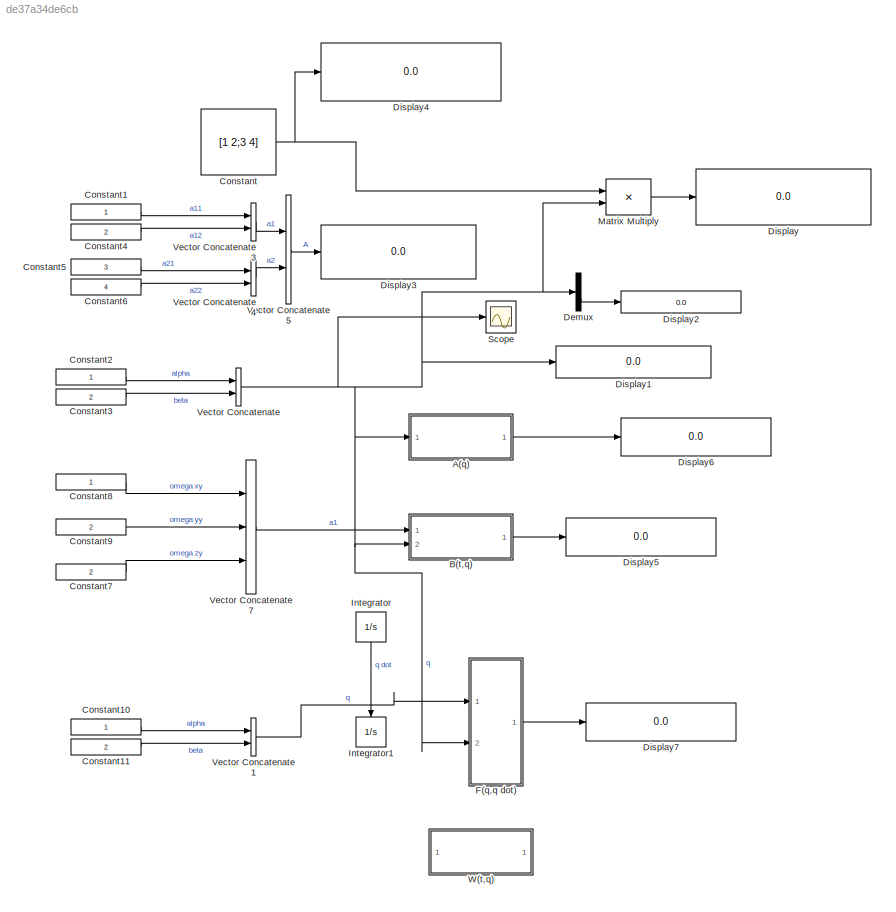
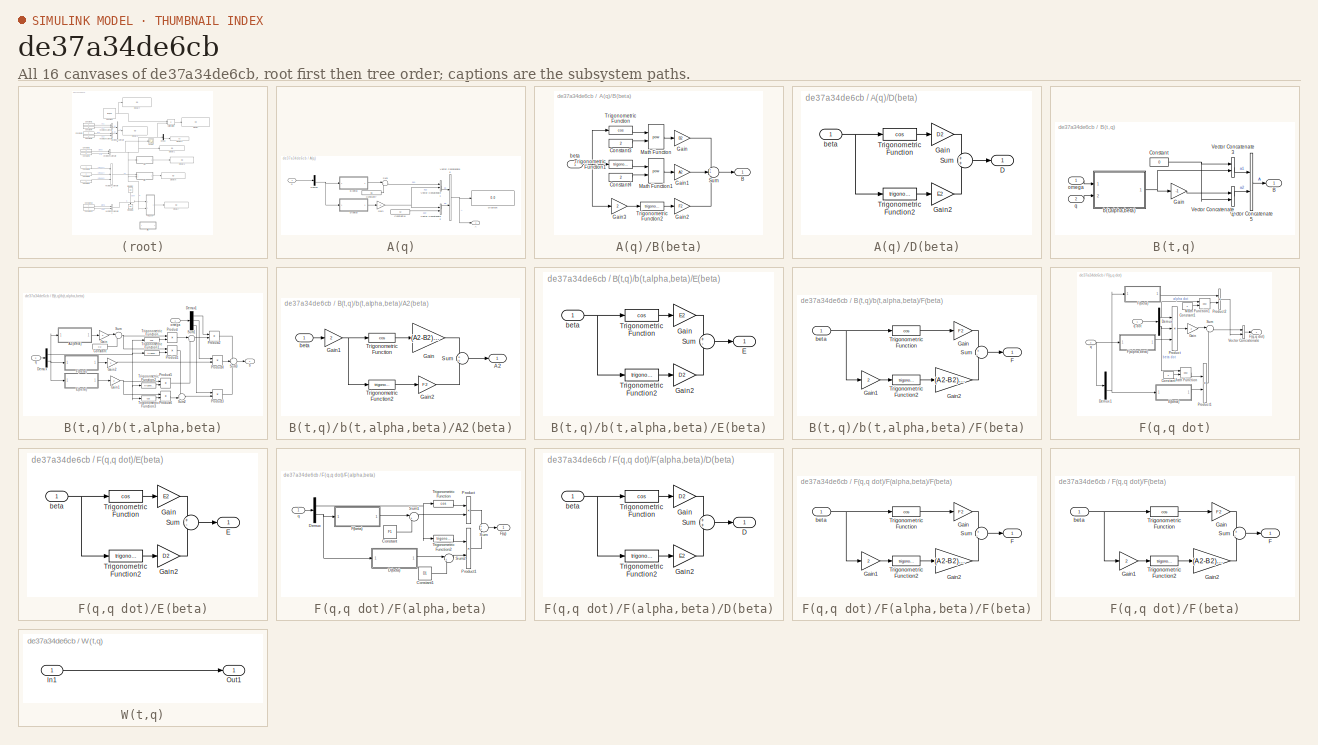
[diagram: thumbnail index - all 16 canvases of the model, root first then tree order]
MODEL slx_de37a34de6cb
KIND model
CONFIG AbsTol = auto
CONFIG EnableMultiTasking = off
CONFIG FixedStep = auto
CONFIG MaxStep = auto
CONFIG MinStep = auto
CONFIG RelTol = 1e-3
CONFIG SampleTimeConstraint = Unconstrained
CONFIG Solver = VariableStepAuto
CONFIG SolverName = VariableStepAuto
CONFIG StartTime = 0.0
CONFIG StopTime = 10.0
WORKSPACE source: MAT-file member
WORKSPACE A2 = 4
BLOCK [SubSystem] A(q)
  Ports = [1, 1]
  RequestExecContextInheritance = off
BLOCK [Outport] A(q)/A
  IconDisplay = Port number
BLOCK [SubSystem] A(q)/B(beta)
  Ports = [1, 1]
  RequestExecContextInheritance = off
BLOCK [Outport] A(q)/B(beta)/B
  IconDisplay = Port number
BLOCK [Constant] A(q)/B(beta)/Constant3
  Value = 2
BLOCK [Constant] A(q)/B(beta)/Constant4
  Value = 2
BLOCK [Gain] A(q)/B(beta)/Gain
  Gain = B2
  OutDataTypeStr = Inherit: Inherit via internal rule
  ParamDataTypeStr = Inherit: Inherit via internal rule
  SaturateOnIntegerOverflow = off
BLOCK [Gain] A(q)/B(beta)/Gain1
  Gain = A2
  OutDataTypeStr = Inherit: Inherit via internal rule
  ParamDataTypeStr = Inherit: Inherit via internal rule
  SaturateOnIntegerOverflow = off
BLOCK [Gain] A(q)/B(beta)/Gain2
  Gain = F2
  OutDataTypeStr = Inherit: Inherit via internal rule
  ParamDataTypeStr = Inherit: Inherit via internal rule
  SaturateOnIntegerOverflow = off
BLOCK [Gain] A(q)/B(beta)/Gain3
  Gain = 2
  OutDataTypeStr = Inherit: Inherit via internal rule
  ParamDataTypeStr = Inherit: Inherit via internal rule
  SaturateOnIntegerOverflow = off
BLOCK [Math] A(q)/B(beta)/Math Function
  Operator = pow
  Ports = [2, 1]
BLOCK [Math] A(q)/B(beta)/Math Function1
  Operator = pow
  Ports = [2, 1]
BLOCK [Sum] A(q)/B(beta)/Sum
  IconShape = round
  InputSameDT = off
  Inputs = ++-
  OutDataTypeStr = Inherit: Inherit via internal rule
  Ports = [3, 1]
  SaturateOnIntegerOverflow = off
BLOCK [Trigonometry] A(q)/B(beta)/Trigonometric Function
  Operator = cos
  Ports = [1, 1]
BLOCK [Trigonometry] A(q)/B(beta)/Trigonometric Function1
  Ports = [1, 1]
BLOCK [Trigonometry] A(q)/B(beta)/Trigonometric Function2
  Ports = [1, 1]
BLOCK [Inport] A(q)/B(beta)/beta
  IconDisplay = Port number
BLOCK [Constant] A(q)/Constant10
  Value = C2
BLOCK [Constant] A(q)/Constant7
  Value = B1
BLOCK [SubSystem] A(q)/D(beta)
  Ports = [1, 1]
  RequestExecContextInheritance = off
BLOCK [Outport] A(q)/D(beta)/D
  IconDisplay = Port number
BLOCK [Gain] A(q)/D(beta)/Gain
  Gain = D2
  OutDataTypeStr = Inherit: Inherit via internal rule
  ParamDataTypeStr = Inherit: Inherit via internal rule
  SaturateOnIntegerOverflow = off
BLOCK [Gain] A(q)/D(beta)/Gain2
  Gain = E2
  OutDataTypeStr = Inherit: Inherit via internal rule
  ParamDataTypeStr = Inherit: Inherit via internal rule
  SaturateOnIntegerOverflow = off
BLOCK [Sum] A(q)/D(beta)/Sum
  IconShape = round
  InputSameDT = off
  OutDataTypeStr = Inherit: Inherit via internal rule
  Ports = [2, 1]
  SaturateOnIntegerOverflow = off
BLOCK [Trigonometry] A(q)/D(beta)/Trigonometric Function
  Operator = cos
  Ports = [1, 1]
BLOCK [Trigonometry] A(q)/D(beta)/Trigonometric Function2
  Ports = [1, 1]
BLOCK [Inport] A(q)/D(beta)/beta
  IconDisplay = Port number
BLOCK [Demux] A(q)/Demux
  DisplayOption = bar
  Outputs = 2
  Ports = [1, 2]
BLOCK [Display] A(q)/Display5
  Decimation = 1
  Ports = [1]
BLOCK [Gain] A(q)/Gain
  Gain = -1
  OutDataTypeStr = Inherit: Inherit via internal rule
  ParamDataTypeStr = Inherit: Inherit via internal rule
  SaturateOnIntegerOverflow = off
BLOCK [Sum] A(q)/Sum
  IconShape = round
  InputSameDT = off
  Inputs = |++
  OutDataTypeStr = Inherit: Inherit via internal rule
  Ports = [2, 1]
  SaturateOnIntegerOverflow = off
BLOCK [Concatenate] A(q)/Vector Concatenate1
  Ports = [2, 1]
BLOCK [Concatenate] A(q)/Vector Concatenate2
  Ports = [2, 1]
BLOCK [Concatenate] A(q)/Vector Concatenate6
  Ports = [2, 1]
BLOCK [Inport] A(q)/q
  IconDisplay = Port number
BLOCK [SubSystem] B(t,q)
  Ports = [2, 1]
  RequestExecContextInheritance = off
BLOCK [Outport] B(t,q)/B
  IconDisplay = Port number
BLOCK [Constant] B(t,q)/Constant
  Value = 0
BLOCK [Gain] B(t,q)/Gain
  Gain = -1
  OutDataTypeStr = Inherit: Inherit via internal rule
  ParamDataTypeStr = Inherit: Inherit via internal rule
  SaturateOnIntegerOverflow = off
BLOCK [Concatenate] B(t,q)/Vector Concatenate3
  Ports = [2, 1]
BLOCK [Concatenate] B(t,q)/Vector Concatenate4
  Ports = [2, 1]
BLOCK [Concatenate] B(t,q)/Vector Concatenate5
  Ports = [2, 1]
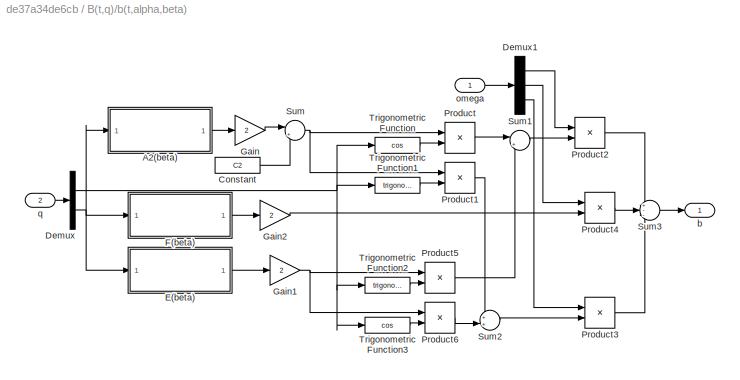
BLOCK [SubSystem] B(t,q)/b(t,alpha,beta)
  Ports = [2, 1]
  RequestExecContextInheritance = off
BLOCK [SubSystem] B(t,q)/b(t,alpha,beta)/A2(beta)
  Ports = [1, 1]
  RequestExecContextInheritance = off
BLOCK [Outport] B(t,q)/b(t,alpha,beta)/A2(beta)/A2
  IconDisplay = Port number
BLOCK [Gain] B(t,q)/b(t,alpha,beta)/A2(beta)/Gain
  Gain = (A2-B2)/2
  OutDataTypeStr = Inherit: Inherit via internal rule
  ParamDataTypeStr = Inherit: Inherit via internal rule
  SaturateOnIntegerOverflow = off
BLOCK [Gain] B(t,q)/b(t,alpha,beta)/A2(beta)/Gain1
  Gain = 2
  OutDataTypeStr = Inherit: Inherit via internal rule
  ParamDataTypeStr = Inherit: Inherit via internal rule
  SaturateOnIntegerOverflow = off
BLOCK [Gain] B(t,q)/b(t,alpha,beta)/A2(beta)/Gain2
  Gain = F2
  OutDataTypeStr = Inherit: Inherit via internal rule
  ParamDataTypeStr = Inherit: Inherit via internal rule
  SaturateOnIntegerOverflow = off
BLOCK [Sum] B(t,q)/b(t,alpha,beta)/A2(beta)/Sum
  IconShape = round
  InputSameDT = off
  OutDataTypeStr = Inherit: Inherit via internal rule
  Ports = [2, 1]
  SaturateOnIntegerOverflow = off
BLOCK [Trigonometry] B(t,q)/b(t,alpha,beta)/A2(beta)/Trigonometric Function
  Operator = cos
  Ports = [1, 1]
BLOCK [Trigonometry] B(t,q)/b(t,alpha,beta)/A2(beta)/Trigonometric Function2
  Ports = [1, 1]
BLOCK [Inport] B(t,q)/b(t,alpha,beta)/A2(beta)/beta
  IconDisplay = Port number
BLOCK [Constant] B(t,q)/b(t,alpha,beta)/Constant
  Value = C2
BLOCK [Demux] B(t,q)/b(t,alpha,beta)/Demux
  DisplayOption = bar
  Outputs = 2
  Ports = [1, 2]
BLOCK [Demux] B(t,q)/b(t,alpha,beta)/Demux1
  DisplayOption = bar
  Outputs = 3
  Ports = [1, 3]
BLOCK [SubSystem] B(t,q)/b(t,alpha,beta)/E(beta)
  Ports = [1, 1]
  RequestExecContextInheritance = off
BLOCK [Outport] B(t,q)/b(t,alpha,beta)/E(beta)/E
  IconDisplay = Port number
BLOCK [Gain] B(t,q)/b(t,alpha,beta)/E(beta)/Gain
  Gain = E2
  OutDataTypeStr = Inherit: Inherit via internal rule
  ParamDataTypeStr = Inherit: Inherit via internal rule
  SaturateOnIntegerOverflow = off
BLOCK [Gain] B(t,q)/b(t,alpha,beta)/E(beta)/Gain2
  Gain = D2
  OutDataTypeStr = Inherit: Inherit via internal rule
  ParamDataTypeStr = Inherit: Inherit via internal rule
  SaturateOnIntegerOverflow = off
BLOCK [Sum] B(t,q)/b(t,alpha,beta)/E(beta)/Sum
  IconShape = round
  InputSameDT = off
  Inputs = +-
  OutDataTypeStr = Inherit: Inherit via internal rule
  Ports = [2, 1]
  SaturateOnIntegerOverflow = off
BLOCK [Trigonometry] B(t,q)/b(t,alpha,beta)/E(beta)/Trigonometric Function
  Operator = cos
  Ports = [1, 1]
BLOCK [Trigonometry] B(t,q)/b(t,alpha,beta)/E(beta)/Trigonometric Function2
  Ports = [1, 1]
BLOCK [Inport] B(t,q)/b(t,alpha,beta)/E(beta)/beta
  IconDisplay = Port number
BLOCK [SubSystem] B(t,q)/b(t,alpha,beta)/F(beta)
  Ports = [1, 1]
  RequestExecContextInheritance = off
BLOCK [Outport] B(t,q)/b(t,alpha,beta)/F(beta)/F
  IconDisplay = Port number
BLOCK [Gain] B(t,q)/b(t,alpha,beta)/F(beta)/Gain
  Gain = F2
  OutDataTypeStr = Inherit: Inherit via internal rule
  ParamDataTypeStr = Inherit: Inherit via internal rule
  SaturateOnIntegerOverflow = off
BLOCK [Gain] B(t,q)/b(t,alpha,beta)/F(beta)/Gain1
  Gain = 2
  OutDataTypeStr = Inherit: Inherit via internal rule
  ParamDataTypeStr = Inherit: Inherit via internal rule
  SaturateOnIntegerOverflow = off
BLOCK [Gain] B(t,q)/b(t,alpha,beta)/F(beta)/Gain2
  Gain = (A2-B2)/2
  OutDataTypeStr = Inherit: Inherit via internal rule
  ParamDataTypeStr = Inherit: Inherit via internal rule
  SaturateOnIntegerOverflow = off
BLOCK [Sum] B(t,q)/b(t,alpha,beta)/F(beta)/Sum
  IconShape = round
  InputSameDT = off
  Inputs = +-
  OutDataTypeStr = Inherit: Inherit via internal rule
  Ports = [2, 1]
  SaturateOnIntegerOverflow = off
BLOCK [Trigonometry] B(t,q)/b(t,alpha,beta)/F(beta)/Trigonometric Function
  Operator = cos
  Ports = [1, 1]
BLOCK [Trigonometry] B(t,q)/b(t,alpha,beta)/F(beta)/Trigonometric Function2
  Ports = [1, 1]
BLOCK [Inport] B(t,q)/b(t,alpha,beta)/F(beta)/beta
  IconDisplay = Port number
BLOCK [Gain] B(t,q)/b(t,alpha,beta)/Gain
  Gain = 2
  OutDataTypeStr = Inherit: Inherit via internal rule
  ParamDataTypeStr = Inherit: Inherit via internal rule
  SaturateOnIntegerOverflow = off
BLOCK [Gain] B(t,q)/b(t,alpha,beta)/Gain1
  Gain = 2
  OutDataTypeStr = Inherit: Inherit via internal rule
  ParamDataTypeStr = Inherit: Inherit via internal rule
  SaturateOnIntegerOverflow = off
BLOCK [Gain] B(t,q)/b(t,alpha,beta)/Gain2
  Gain = 2
  OutDataTypeStr = Inherit: Inherit via internal rule
  ParamDataTypeStr = Inherit: Inherit via internal rule
  SaturateOnIntegerOverflow = off
BLOCK [Product] B(t,q)/b(t,alpha,beta)/Product
  InputSameDT = off
  OutDataTypeStr = Inherit: Inherit via internal rule
  Ports = [2, 1]
  RndMeth = Floor
  SaturateOnIntegerOverflow = off
BLOCK [Product] B(t,q)/b(t,alpha,beta)/Product1
  InputSameDT = off
  OutDataTypeStr = Inherit: Inherit via internal rule
  Ports = [2, 1]
  RndMeth = Floor
  SaturateOnIntegerOverflow = off
BLOCK [Product] B(t,q)/b(t,alpha,beta)/Product2
  InputSameDT = off
  OutDataTypeStr = Inherit: Inherit via internal rule
  Ports = [2, 1]
  RndMeth = Floor
  SaturateOnIntegerOverflow = off
BLOCK [Product] B(t,q)/b(t,alpha,beta)/Product3
  InputSameDT = off
  OutDataTypeStr = Inherit: Inherit via internal rule
  Ports = [2, 1]
  RndMeth = Floor
  SaturateOnIntegerOverflow = off
BLOCK [Product] B(t,q)/b(t,alpha,beta)/Product4
  InputSameDT = off
  OutDataTypeStr = Inherit: Inherit via internal rule
  Ports = [2, 1]
  RndMeth = Floor
  SaturateOnIntegerOverflow = off
BLOCK [Product] B(t,q)/b(t,alpha,beta)/Product5
  InputSameDT = off
  OutDataTypeStr = Inherit: Inherit via internal rule
  Ports = [2, 1]
  RndMeth = Floor
  SaturateOnIntegerOverflow = off
BLOCK [Product] B(t,q)/b(t,alpha,beta)/Product6
  InputSameDT = off
  OutDataTypeStr = Inherit: Inherit via internal rule
  Ports = [2, 1]
  RndMeth = Floor
  SaturateOnIntegerOverflow = off
BLOCK [Sum] B(t,q)/b(t,alpha,beta)/Sum
  IconShape = round
  InputSameDT = off
  Inputs = |+-
  OutDataTypeStr = Inherit: Inherit via internal rule
  Ports = [2, 1]
  SaturateOnIntegerOverflow = off
BLOCK [Sum] B(t,q)/b(t,alpha,beta)/Sum1
  IconShape = round
  InputSameDT = off
  Inputs = |+-
  OutDataTypeStr = Inherit: Inherit via internal rule
  Ports = [2, 1]
  SaturateOnIntegerOverflow = off
BLOCK [Sum] B(t,q)/b(t,alpha,beta)/Sum2
  IconShape = round
  InputSameDT = off
  Inputs = ++|
  OutDataTypeStr = Inherit: Inherit via internal rule
  Ports = [2, 1]
  SaturateOnIntegerOverflow = off
BLOCK [Sum] B(t,q)/b(t,alpha,beta)/Sum3
  IconShape = round
  InputSameDT = off
  Inputs = +--
  OutDataTypeStr = Inherit: Inherit via internal rule
  Ports = [3, 1]
  SaturateOnIntegerOverflow = off
BLOCK [Trigonometry] B(t,q)/b(t,alpha,beta)/Trigonometric Function
  Operator = cos
  Ports = [1, 1]
BLOCK [Trigonometry] B(t,q)/b(t,alpha,beta)/Trigonometric Function1
  Ports = [1, 1]
BLOCK [Trigonometry] B(t,q)/b(t,alpha,beta)/Trigonometric Function2
  Ports = [1, 1]
BLOCK [Trigonometry] B(t,q)/b(t,alpha,beta)/Trigonometric Function3
  Operator = cos
  Ports = [1, 1]
BLOCK [Outport] B(t,q)/b(t,alpha,beta)/b
  IconDisplay = Port number
BLOCK [Inport] B(t,q)/b(t,alpha,beta)/omega
  IconDisplay = Port number
BLOCK [Inport] B(t,q)/b(t,alpha,beta)/q
  IconDisplay = Port number
  Port = 2
BLOCK [Inport] B(t,q)/omega
  IconDisplay = Port number
BLOCK [Inport] B(t,q)/q
  IconDisplay = Port number
  Port = 2
BLOCK [Constant] Constant
  Value = [1 2;3 4]
BLOCK [Constant] Constant1
BLOCK [Constant] Constant10
BLOCK [Constant] Constant11
  Value = 2
BLOCK [Constant] Constant2
BLOCK [Constant] Constant3
  Value = 2
BLOCK [Constant] Constant4
  Value = 2
BLOCK [Constant] Constant5
  Value = 3
BLOCK [Constant] Constant6
  Value = 4
BLOCK [Constant] Constant7
  Value = 2
BLOCK [Constant] Constant8
BLOCK [Constant] Constant9
  Value = 2
BLOCK [Demux] Demux
  DisplayOption = bar
  Outputs = 2
  Ports = [1, 2]
BLOCK [Display] Display
  Decimation = 1
  Ports = [1]
BLOCK [Display] Display1
  Decimation = 1
  Ports = [1]
BLOCK [Display] Display2
  Decimation = 1
  Ports = [1]
BLOCK [Display] Display3
  Decimation = 1
  Ports = [1]
BLOCK [Display] Display4
  Decimation = 1
  Ports = [1]
BLOCK [Display] Display5
  Decimation = 1
  Ports = [1]
BLOCK [Display] Display6
  Decimation = 1
  Ports = [1]
BLOCK [Display] Display7
  Decimation = 1
  Ports = [1]
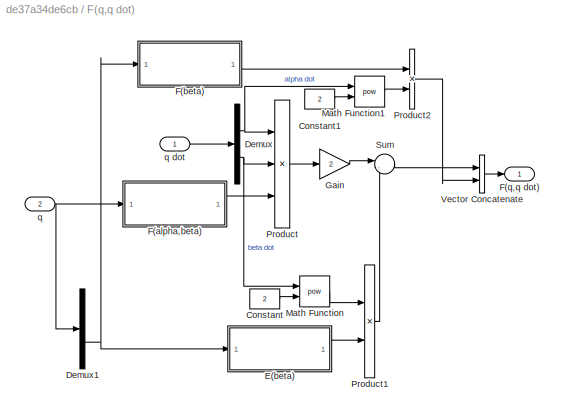
BLOCK [SubSystem] F(q,q dot)
  Ports = [2, 1]
  RequestExecContextInheritance = off
BLOCK [Constant] F(q,q dot)/Constant
  Value = 2
BLOCK [Constant] F(q,q dot)/Constant1
  Value = 2
BLOCK [Demux] F(q,q dot)/Demux
  DisplayOption = bar
  Outputs = 2
  Ports = [1, 2]
BLOCK [Demux] F(q,q dot)/Demux1
  DisplayOption = bar
  Outputs = 2
  Ports = [1, 2]
BLOCK [SubSystem] F(q,q dot)/E(beta)
  Ports = [1, 1]
  RequestExecContextInheritance = off
BLOCK [Outport] F(q,q dot)/E(beta)/E
  IconDisplay = Port number
BLOCK [Gain] F(q,q dot)/E(beta)/Gain
  Gain = E2
  OutDataTypeStr = Inherit: Inherit via internal rule
  ParamDataTypeStr = Inherit: Inherit via internal rule
  SaturateOnIntegerOverflow = off
BLOCK [Gain] F(q,q dot)/E(beta)/Gain2
  Gain = D2
  OutDataTypeStr = Inherit: Inherit via internal rule
  ParamDataTypeStr = Inherit: Inherit via internal rule
  SaturateOnIntegerOverflow = off
BLOCK [Sum] F(q,q dot)/E(beta)/Sum
  IconShape = round
  InputSameDT = off
  Inputs = +-
  OutDataTypeStr = Inherit: Inherit via internal rule
  Ports = [2, 1]
  SaturateOnIntegerOverflow = off
BLOCK [Trigonometry] F(q,q dot)/E(beta)/Trigonometric Function
  Operator = cos
  Ports = [1, 1]
BLOCK [Trigonometry] F(q,q dot)/E(beta)/Trigonometric Function2
  Ports = [1, 1]
BLOCK [Inport] F(q,q dot)/E(beta)/beta
  IconDisplay = Port number
BLOCK [SubSystem] F(q,q dot)/F(alpha,beta)
  Ports = [1, 1]
  RequestExecContextInheritance = off
BLOCK [Constant] F(q,q dot)/F(alpha,beta)/Constant
  Value = F1
BLOCK [Constant] F(q,q dot)/F(alpha,beta)/Constant1
  Value = D1
BLOCK [SubSystem] F(q,q dot)/F(alpha,beta)/D(beta)
  Ports = [1, 1]
  RequestExecContextInheritance = off
BLOCK [Outport] F(q,q dot)/F(alpha,beta)/D(beta)/D
  IconDisplay = Port number
BLOCK [Gain] F(q,q dot)/F(alpha,beta)/D(beta)/Gain
  Gain = D2
  OutDataTypeStr = Inherit: Inherit via internal rule
  ParamDataTypeStr = Inherit: Inherit via internal rule
  SaturateOnIntegerOverflow = off
BLOCK [Gain] F(q,q dot)/F(alpha,beta)/D(beta)/Gain2
  Gain = E2
  OutDataTypeStr = Inherit: Inherit via internal rule
  ParamDataTypeStr = Inherit: Inherit via internal rule
  SaturateOnIntegerOverflow = off
BLOCK [Sum] F(q,q dot)/F(alpha,beta)/D(beta)/Sum
  IconShape = round
  InputSameDT = off
  OutDataTypeStr = Inherit: Inherit via internal rule
  Ports = [2, 1]
  SaturateOnIntegerOverflow = off
BLOCK [Trigonometry] F(q,q dot)/F(alpha,beta)/D(beta)/Trigonometric Function
  Operator = cos
  Ports = [1, 1]
BLOCK [Trigonometry] F(q,q dot)/F(alpha,beta)/D(beta)/Trigonometric Function2
  Ports = [1, 1]
BLOCK [Inport] F(q,q dot)/F(alpha,beta)/D(beta)/beta
  IconDisplay = Port number
BLOCK [Demux] F(q,q dot)/F(alpha,beta)/Demux
  DisplayOption = bar
  Outputs = 2
  Ports = [1, 2]
BLOCK [SubSystem] F(q,q dot)/F(alpha,beta)/F(beta)
  Ports = [1, 1]
  RequestExecContextInheritance = off
BLOCK [Outport] F(q,q dot)/F(alpha,beta)/F(beta)/F
  IconDisplay = Port number
BLOCK [Gain] F(q,q dot)/F(alpha,beta)/F(beta)/Gain
  Gain = F2
  OutDataTypeStr = Inherit: Inherit via internal rule
  ParamDataTypeStr = Inherit: Inherit via internal rule
  SaturateOnIntegerOverflow = off
BLOCK [Gain] F(q,q dot)/F(alpha,beta)/F(beta)/Gain1
  Gain = 2
  OutDataTypeStr = Inherit: Inherit via internal rule
  ParamDataTypeStr = Inherit: Inherit via internal rule
  SaturateOnIntegerOverflow = off
BLOCK [Gain] F(q,q dot)/F(alpha,beta)/F(beta)/Gain2
  Gain = (A2-B2)/2
  OutDataTypeStr = Inherit: Inherit via internal rule
  ParamDataTypeStr = Inherit: Inherit via internal rule
  SaturateOnIntegerOverflow = off
BLOCK [Sum] F(q,q dot)/F(alpha,beta)/F(beta)/Sum
  IconShape = round
  InputSameDT = off
  Inputs = +-
  OutDataTypeStr = Inherit: Inherit via internal rule
  Ports = [2, 1]
  SaturateOnIntegerOverflow = off
BLOCK [Trigonometry] F(q,q dot)/F(alpha,beta)/F(beta)/Trigonometric Function
  Operator = cos
  Ports = [1, 1]
BLOCK [Trigonometry] F(q,q dot)/F(alpha,beta)/F(beta)/Trigonometric Function2
  Ports = [1, 1]
BLOCK [Inport] F(q,q dot)/F(alpha,beta)/F(beta)/beta
  IconDisplay = Port number
BLOCK [Outport] F(q,q dot)/F(alpha,beta)/F(q)
  IconDisplay = Port number
BLOCK [Product] F(q,q dot)/F(alpha,beta)/Product
  InputSameDT = off
  OutDataTypeStr = Inherit: Inherit via internal rule
  Ports = [2, 1]
  RndMeth = Floor
  SaturateOnIntegerOverflow = off
BLOCK [Product] F(q,q dot)/F(alpha,beta)/Product1
  InputSameDT = off
  OutDataTypeStr = Inherit: Inherit via internal rule
  Ports = [2, 1]
  RndMeth = Floor
  SaturateOnIntegerOverflow = off
BLOCK [Sum] F(q,q dot)/F(alpha,beta)/Sum
  IconShape = round
  InputSameDT = off
  OutDataTypeStr = Inherit: Inherit via internal rule
  Ports = [2, 1]
  SaturateOnIntegerOverflow = off
BLOCK [Sum] F(q,q dot)/F(alpha,beta)/Sum1
  IconShape = round
  InputSameDT = off
  Inputs = |++
  OutDataTypeStr = Inherit: Inherit via internal rule
  Ports = [2, 1]
  SaturateOnIntegerOverflow = off
BLOCK [Sum] F(q,q dot)/F(alpha,beta)/Sum2
  IconShape = round
  InputSameDT = off
  Inputs = |++
  OutDataTypeStr = Inherit: Inherit via internal rule
  Ports = [2, 1]
  SaturateOnIntegerOverflow = off
BLOCK [Trigonometry] F(q,q dot)/F(alpha,beta)/Trigonometric Function
  Operator = cos
  Ports = [1, 1]
BLOCK [Trigonometry] F(q,q dot)/F(alpha,beta)/Trigonometric Function2
  Ports = [1, 1]
BLOCK [Inport] F(q,q dot)/F(alpha,beta)/q
  IconDisplay = Port number
BLOCK [SubSystem] F(q,q dot)/F(beta)
  Ports = [1, 1]
  RequestExecContextInheritance = off
BLOCK [Outport] F(q,q dot)/F(beta)/F
  IconDisplay = Port number
BLOCK [Gain] F(q,q dot)/F(beta)/Gain
  Gain = F2
  OutDataTypeStr = Inherit: Inherit via internal rule
  ParamDataTypeStr = Inherit: Inherit via internal rule
  SaturateOnIntegerOverflow = off
BLOCK [Gain] F(q,q dot)/F(beta)/Gain1
  Gain = 2
  OutDataTypeStr = Inherit: Inherit via internal rule
  ParamDataTypeStr = Inherit: Inherit via internal rule
  SaturateOnIntegerOverflow = off
BLOCK [Gain] F(q,q dot)/F(beta)/Gain2
  Gain = (A2-B2)/2
  OutDataTypeStr = Inherit: Inherit via internal rule
  ParamDataTypeStr = Inherit: Inherit via internal rule
  SaturateOnIntegerOverflow = off
BLOCK [Sum] F(q,q dot)/F(beta)/Sum
  IconShape = round
  InputSameDT = off
  Inputs = +-
  OutDataTypeStr = Inherit: Inherit via internal rule
  Ports = [2, 1]
  SaturateOnIntegerOverflow = off
BLOCK [Trigonometry] F(q,q dot)/F(beta)/Trigonometric Function
  Operator = cos
  Ports = [1, 1]
BLOCK [Trigonometry] F(q,q dot)/F(beta)/Trigonometric Function2
  Ports = [1, 1]
BLOCK [Inport] F(q,q dot)/F(beta)/beta
  IconDisplay = Port number
BLOCK [Outport] F(q,q dot)/F(q,q dot)
  IconDisplay = Port number
BLOCK [Gain] F(q,q dot)/Gain
  Gain = 2
  OutDataTypeStr = Inherit: Inherit via internal rule
  ParamDataTypeStr = Inherit: Inherit via internal rule
  SaturateOnIntegerOverflow = off
BLOCK [Math] F(q,q dot)/Math Function
  Operator = pow
  Ports = [2, 1]
BLOCK [Math] F(q,q dot)/Math Function1
  Operator = pow
  Ports = [2, 1]
BLOCK [Product] F(q,q dot)/Product
  InputSameDT = off
  Inputs = 3
  OutDataTypeStr = Inherit: Inherit via internal rule
  Ports = [3, 1]
  RndMeth = Floor
  SaturateOnIntegerOverflow = off
BLOCK [Product] F(q,q dot)/Product1
  InputSameDT = off
  OutDataTypeStr = Inherit: Inherit via internal rule
  Ports = [2, 1]
  RndMeth = Floor
  SaturateOnIntegerOverflow = off
BLOCK [Product] F(q,q dot)/Product2
  InputSameDT = off
  OutDataTypeStr = Inherit: Inherit via internal rule
  Ports = [2, 1]
  RndMeth = Floor
  SaturateOnIntegerOverflow = off
BLOCK [Sum] F(q,q dot)/Sum
  IconShape = round
  InputSameDT = off
  Inputs = |--
  OutDataTypeStr = Inherit: Inherit via internal rule
  Ports = [2, 1]
  SaturateOnIntegerOverflow = off
BLOCK [Concatenate] F(q,q dot)/Vector Concatenate
  Ports = [2, 1]
BLOCK [Inport] F(q,q dot)/q
  IconDisplay = Port number
  Port = 2
BLOCK [Inport] F(q,q dot)/q dot
  IconDisplay = Port number
BLOCK [Integrator] Integrator
  Ports = [1, 1]
BLOCK [Integrator] Integrator1
  Ports = [1, 1]
BLOCK [Product] Matrix Multiply
  InputSameDT = off
  Multiplication = Matrix(*)
  OutDataTypeStr = Inherit: Inherit via internal rule
  Ports = [2, 1]
  RndMeth = Floor
  SaturateOnIntegerOverflow = off
BLOCK [Scope] Scope
  Floating = off
  NumInputPorts = 1
  Ports = [1]
  ScopeSpecificationString = Simulink.scopes.TimeScopeBlockCfg('CurrentConfiguration', extmgr.ConfigurationSet(extmgr.Configuration('Core','General UI',true),extmgr.Configuration('Core','Source UI',true),extmgr.Configuration('Sources','WiredSimulink',true),extmgr.Configuration('Visuals','Time Domain',true,'SerializedDisplays',{struct('MinYLimReal','0.875','MaxYLimReal','2.125','YLabelReal','','MinYLimMag','0.875','MaxYLimMag'...<+1311ch>
BLOCK [Concatenate] Vector Concatenate
  Ports = [2, 1]
BLOCK [Concatenate] Vector Concatenate1
  Ports = [2, 1]
BLOCK [Concatenate] Vector Concatenate3
  Ports = [2, 1]
BLOCK [Concatenate] Vector Concatenate4
  Ports = [2, 1]
BLOCK [Concatenate] Vector Concatenate5
  Ports = [2, 1]
BLOCK [Concatenate] Vector Concatenate7
  NumInputs = 3
  Ports = [3, 1]
BLOCK [SubSystem] W(t,q)
  Ports = [1, 1]
  RequestExecContextInheritance = off
BLOCK [Inport] W(t,q)/In1
  IconDisplay = Port number
BLOCK [Outport] W(t,q)/Out1
  IconDisplay = Port number
LINE A(q)/B(beta)/Constant3:1 -> A(q)/B(beta)/Math Function:2
LINE A(q)/B(beta)/Constant4:1 -> A(q)/B(beta)/Math Function1:2
LINE A(q)/B(beta)/Gain1:1 -> A(q)/B(beta)/Sum:2
LINE A(q)/B(beta)/Gain2:1 -> A(q)/B(beta)/Sum:3
LINE A(q)/B(beta)/Gain3:1 -> A(q)/B(beta)/Trigonometric Function2:1
LINE A(q)/B(beta)/Gain:1 -> A(q)/B(beta)/Sum:1
LINE A(q)/B(beta)/Math Function1:1 -> A(q)/B(beta)/Gain1:1
LINE A(q)/B(beta)/Math Function:1 -> A(q)/B(beta)/Gain:1
LINE A(q)/B(beta)/Sum:1 -> A(q)/B(beta)/B:1
LINE A(q)/B(beta)/Trigonometric Function1:1 -> A(q)/B(beta)/Math Function1:1
LINE A(q)/B(beta)/Trigonometric Function2:1 -> A(q)/B(beta)/Gain2:1
LINE A(q)/B(beta)/Trigonometric Function:1 -> A(q)/B(beta)/Math Function:1
NET A(q)/B(beta)/beta:1 -> A(q)/B(beta)/Gain3:1, A(q)/B(beta)/Trigonometric Function1:1, A(q)/B(beta)/Trigonometric Function:1
LINE A(q)/B(beta):1 -> A(q)/Sum:1
LINE A(q)/Constant10:1 -> A(q)/Vector Concatenate2:2
LINE A(q)/Constant7:1 -> A(q)/Sum:2
LINE A(q)/D(beta)/Gain2:1 -> A(q)/D(beta)/Sum:2
LINE A(q)/D(beta)/Gain:1 -> A(q)/D(beta)/Sum:1
LINE A(q)/D(beta)/Sum:1 -> A(q)/D(beta)/D:1
LINE A(q)/D(beta)/Trigonometric Function2:1 -> A(q)/D(beta)/Gain2:1
LINE A(q)/D(beta)/Trigonometric Function:1 -> A(q)/D(beta)/Gain:1
NET A(q)/D(beta)/beta:1 -> A(q)/D(beta)/Trigonometric Function2:1, A(q)/D(beta)/Trigonometric Function:1
LINE A(q)/D(beta):1 -> A(q)/Gain:1
NET A(q)/Demux:2 -> A(q)/B(beta):1, A(q)/D(beta):1
NET A(q)/Gain:1 -> A(q)/Vector Concatenate1:2, A(q)/Vector Concatenate2:1
LINE A(q)/Sum:1 -> A(q)/Vector Concatenate1:1
LINE A(q)/Vector Concatenate1:1 -> A(q)/Vector Concatenate6:1
LINE A(q)/Vector Concatenate2:1 -> A(q)/Vector Concatenate6:2
NET A(q)/Vector Concatenate6:1 -> A(q)/A:1, A(q)/Display5:1
LINE A(q)/q:1 -> A(q)/Demux:1
LINE A(q):1 -> Display6:1
NET B(t,q)/Constant:1 -> B(t,q)/Vector Concatenate3:1, B(t,q)/Vector Concatenate4:2
LINE B(t,q)/Gain:1 -> B(t,q)/Vector Concatenate4:1
LINE B(t,q)/Vector Concatenate3:1 -> B(t,q)/Vector Concatenate5:1
LINE B(t,q)/Vector Concatenate4:1 -> B(t,q)/Vector Concatenate5:2
LINE B(t,q)/Vector Concatenate5:1 -> B(t,q)/B:1
NET B(t,q)/b(t,alpha,beta)/A2(beta)/Gain1:1 -> B(t,q)/b(t,alpha,beta)/A2(beta)/Trigonometric Function2:1, B(t,q)/b(t,alpha,beta)/A2(beta)/Trigonometric Function:1
LINE B(t,q)/b(t,alpha,beta)/A2(beta)/Gain2:1 -> B(t,q)/b(t,alpha,beta)/A2(beta)/Sum:2
LINE B(t,q)/b(t,alpha,beta)/A2(beta)/Gain:1 -> B(t,q)/b(t,alpha,beta)/A2(beta)/Sum:1
LINE B(t,q)/b(t,alpha,beta)/A2(beta)/Sum:1 -> B(t,q)/b(t,alpha,beta)/A2(beta)/A2:1
LINE B(t,q)/b(t,alpha,beta)/A2(beta)/Trigonometric Function2:1 -> B(t,q)/b(t,alpha,beta)/A2(beta)/Gain2:1
LINE B(t,q)/b(t,alpha,beta)/A2(beta)/Trigonometric Function:1 -> B(t,q)/b(t,alpha,beta)/A2(beta)/Gain:1
LINE B(t,q)/b(t,alpha,beta)/A2(beta)/beta:1 -> B(t,q)/b(t,alpha,beta)/A2(beta)/Gain1:1
LINE B(t,q)/b(t,alpha,beta)/A2(beta):1 -> B(t,q)/b(t,alpha,beta)/Gain:1
LINE B(t,q)/b(t,alpha,beta)/Constant:1 -> B(t,q)/b(t,alpha,beta)/Sum:2
LINE B(t,q)/b(t,alpha,beta)/Demux1:1 -> B(t,q)/b(t,alpha,beta)/Product2:1
LINE B(t,q)/b(t,alpha,beta)/Demux1:2 -> B(t,q)/b(t,alpha,beta)/Product4:1
LINE B(t,q)/b(t,alpha,beta)/Demux1:3 -> B(t,q)/b(t,alpha,beta)/Product3:1
NET B(t,q)/b(t,alpha,beta)/Demux:1 -> B(t,q)/b(t,alpha,beta)/Trigonometric Function1:1, B(t,q)/b(t,alpha,beta)/Trigonometric Function2:1, B(t,q)/b(t,alpha,beta)/Trigonometric Function3:1, B(t,q)/b(t,alpha,beta)/Trigonometric Function:1
NET B(t,q)/b(t,alpha,beta)/Demux:2 -> B(t,q)/b(t,alpha,beta)/A2(beta):1, B(t,q)/b(t,alpha,beta)/E(beta):1, B(t,q)/b(t,alpha,beta)/F(beta):1
LINE B(t,q)/b(t,alpha,beta)/E(beta)/Gain2:1 -> B(t,q)/b(t,alpha,beta)/E(beta)/Sum:2
LINE B(t,q)/b(t,alpha,beta)/E(beta)/Gain:1 -> B(t,q)/b(t,alpha,beta)/E(beta)/Sum:1
LINE B(t,q)/b(t,alpha,beta)/E(beta)/Sum:1 -> B(t,q)/b(t,alpha,beta)/E(beta)/E:1
LINE B(t,q)/b(t,alpha,beta)/E(beta)/Trigonometric Function2:1 -> B(t,q)/b(t,alpha,beta)/E(beta)/Gain2:1
LINE B(t,q)/b(t,alpha,beta)/E(beta)/Trigonometric Function:1 -> B(t,q)/b(t,alpha,beta)/E(beta)/Gain:1
NET B(t,q)/b(t,alpha,beta)/E(beta)/beta:1 -> B(t,q)/b(t,alpha,beta)/E(beta)/Trigonometric Function2:1, B(t,q)/b(t,alpha,beta)/E(beta)/Trigonometric Function:1
LINE B(t,q)/b(t,alpha,beta)/E(beta):1 -> B(t,q)/b(t,alpha,beta)/Gain1:1
LINE B(t,q)/b(t,alpha,beta)/F(beta)/Gain1:1 -> B(t,q)/b(t,alpha,beta)/F(beta)/Trigonometric Function2:1
LINE B(t,q)/b(t,alpha,beta)/F(beta)/Gain2:1 -> B(t,q)/b(t,alpha,beta)/F(beta)/Sum:2
LINE B(t,q)/b(t,alpha,beta)/F(beta)/Gain:1 -> B(t,q)/b(t,alpha,beta)/F(beta)/Sum:1
LINE B(t,q)/b(t,alpha,beta)/F(beta)/Sum:1 -> B(t,q)/b(t,alpha,beta)/F(beta)/F:1
LINE B(t,q)/b(t,alpha,beta)/F(beta)/Trigonometric Function2:1 -> B(t,q)/b(t,alpha,beta)/F(beta)/Gain2:1
LINE B(t,q)/b(t,alpha,beta)/F(beta)/Trigonometric Function:1 -> B(t,q)/b(t,alpha,beta)/F(beta)/Gain:1
NET B(t,q)/b(t,alpha,beta)/F(beta)/beta:1 -> B(t,q)/b(t,alpha,beta)/F(beta)/Gain1:1, B(t,q)/b(t,alpha,beta)/F(beta)/Trigonometric Function:1
LINE B(t,q)/b(t,alpha,beta)/F(beta):1 -> B(t,q)/b(t,alpha,beta)/Gain2:1
NET B(t,q)/b(t,alpha,beta)/Gain1:1 -> B(t,q)/b(t,alpha,beta)/Product5:1, B(t,q)/b(t,alpha,beta)/Product6:1
LINE B(t,q)/b(t,alpha,beta)/Gain2:1 -> B(t,q)/b(t,alpha,beta)/Product4:2
LINE B(t,q)/b(t,alpha,beta)/Gain:1 -> B(t,q)/b(t,alpha,beta)/Sum:1
LINE B(t,q)/b(t,alpha,beta)/Product1:1 -> B(t,q)/b(t,alpha,beta)/Sum2:1
LINE B(t,q)/b(t,alpha,beta)/Product2:1 -> B(t,q)/b(t,alpha,beta)/Sum3:1
LINE B(t,q)/b(t,alpha,beta)/Product3:1 -> B(t,q)/b(t,alpha,beta)/Sum3:3
LINE B(t,q)/b(t,alpha,beta)/Product4:1 -> B(t,q)/b(t,alpha,beta)/Sum3:2
LINE B(t,q)/b(t,alpha,beta)/Product5:1 -> B(t,q)/b(t,alpha,beta)/Sum1:2
LINE B(t,q)/b(t,alpha,beta)/Product6:1 -> B(t,q)/b(t,alpha,beta)/Sum2:2
LINE B(t,q)/b(t,alpha,beta)/Product:1 -> B(t,q)/b(t,alpha,beta)/Sum1:1
LINE B(t,q)/b(t,alpha,beta)/Sum1:1 -> B(t,q)/b(t,alpha,beta)/Product2:2
LINE B(t,q)/b(t,alpha,beta)/Sum2:1 -> B(t,q)/b(t,alpha,beta)/Product3:2
LINE B(t,q)/b(t,alpha,beta)/Sum3:1 -> B(t,q)/b(t,alpha,beta)/b:1
NET B(t,q)/b(t,alpha,beta)/Sum:1 -> B(t,q)/b(t,alpha,beta)/Product1:1, B(t,q)/b(t,alpha,beta)/Product:1
LINE B(t,q)/b(t,alpha,beta)/Trigonometric Function1:1 -> B(t,q)/b(t,alpha,beta)/Product1:2
LINE B(t,q)/b(t,alpha,beta)/Trigonometric Function2:1 -> B(t,q)/b(t,alpha,beta)/Product5:2
LINE B(t,q)/b(t,alpha,beta)/Trigonometric Function3:1 -> B(t,q)/b(t,alpha,beta)/Product6:2
LINE B(t,q)/b(t,alpha,beta)/Trigonometric Function:1 -> B(t,q)/b(t,alpha,beta)/Product:2
LINE B(t,q)/b(t,alpha,beta)/omega:1 -> B(t,q)/b(t,alpha,beta)/Demux1:1
LINE B(t,q)/b(t,alpha,beta)/q:1 -> B(t,q)/b(t,alpha,beta)/Demux:1
NET B(t,q)/b(t,alpha,beta):1 -> B(t,q)/Gain:1, B(t,q)/Vector Concatenate3:2
LINE B(t,q)/omega:1 -> B(t,q)/b(t,alpha,beta):1
LINE B(t,q)/q:1 -> B(t,q)/b(t,alpha,beta):2
LINE B(t,q):1 -> Display5:1
LINE Constant10:1 -> Vector Concatenate1:1
LINE Constant11:1 -> Vector Concatenate1:2
LINE Constant1:1 -> Vector Concatenate3:1
LINE Constant2:1 -> Vector Concatenate:1
LINE Constant3:1 -> Vector Concatenate:2
LINE Constant4:1 -> Vector Concatenate3:2
LINE Constant5:1 -> Vector Concatenate4:1
LINE Constant6:1 -> Vector Concatenate4:2
LINE Constant7:1 -> Vector Concatenate7:3
LINE Constant8:1 -> Vector Concatenate7:1
LINE Constant9:1 -> Vector Concatenate7:2
NET Constant:1 -> Display4:1, Matrix Multiply:1
LINE Demux:2 -> Display2:1
LINE F(q,q dot)/Constant1:1 -> F(q,q dot)/Math Function1:2
LINE F(q,q dot)/Constant:1 -> F(q,q dot)/Math Function:2
NET F(q,q dot)/Demux1:2 -> F(q,q dot)/E(beta):1, F(q,q dot)/F(beta):1
NET F(q,q dot)/Demux:1 -> F(q,q dot)/Math Function1:1, F(q,q dot)/Product:1
NET F(q,q dot)/Demux:2 -> F(q,q dot)/Math Function:1, F(q,q dot)/Product:2
LINE F(q,q dot)/E(beta)/Gain2:1 -> F(q,q dot)/E(beta)/Sum:2
LINE F(q,q dot)/E(beta)/Gain:1 -> F(q,q dot)/E(beta)/Sum:1
LINE F(q,q dot)/E(beta)/Sum:1 -> F(q,q dot)/E(beta)/E:1
LINE F(q,q dot)/E(beta)/Trigonometric Function2:1 -> F(q,q dot)/E(beta)/Gain2:1
LINE F(q,q dot)/E(beta)/Trigonometric Function:1 -> F(q,q dot)/E(beta)/Gain:1
NET F(q,q dot)/E(beta)/beta:1 -> F(q,q dot)/E(beta)/Trigonometric Function2:1, F(q,q dot)/E(beta)/Trigonometric Function:1
LINE F(q,q dot)/E(beta):1 -> F(q,q dot)/Product1:2
LINE F(q,q dot)/F(alpha,beta)/Constant1:1 -> F(q,q dot)/F(alpha,beta)/Sum2:2
LINE F(q,q dot)/F(alpha,beta)/Constant:1 -> F(q,q dot)/F(alpha,beta)/Sum1:2
LINE F(q,q dot)/F(alpha,beta)/D(beta)/Gain2:1 -> F(q,q dot)/F(alpha,beta)/D(beta)/Sum:2
LINE F(q,q dot)/F(alpha,beta)/D(beta)/Gain:1 -> F(q,q dot)/F(alpha,beta)/D(beta)/Sum:1
LINE F(q,q dot)/F(alpha,beta)/D(beta)/Sum:1 -> F(q,q dot)/F(alpha,beta)/D(beta)/D:1
LINE F(q,q dot)/F(alpha,beta)/D(beta)/Trigonometric Function2:1 -> F(q,q dot)/F(alpha,beta)/D(beta)/Gain2:1
LINE F(q,q dot)/F(alpha,beta)/D(beta)/Trigonometric Function:1 -> F(q,q dot)/F(alpha,beta)/D(beta)/Gain:1
NET F(q,q dot)/F(alpha,beta)/D(beta)/beta:1 -> F(q,q dot)/F(alpha,beta)/D(beta)/Trigonometric Function2:1, F(q,q dot)/F(alpha,beta)/D(beta)/Trigonometric Function:1
LINE F(q,q dot)/F(alpha,beta)/D(beta):1 -> F(q,q dot)/F(alpha,beta)/Sum2:1
NET F(q,q dot)/F(alpha,beta)/Demux:1 -> F(q,q dot)/F(alpha,beta)/Trigonometric Function2:1, F(q,q dot)/F(alpha,beta)/Trigonometric Function:1
NET F(q,q dot)/F(alpha,beta)/Demux:2 -> F(q,q dot)/F(alpha,beta)/D(beta):1, F(q,q dot)/F(alpha,beta)/F(beta):1
LINE F(q,q dot)/F(alpha,beta)/F(beta)/Gain1:1 -> F(q,q dot)/F(alpha,beta)/F(beta)/Trigonometric Function2:1
LINE F(q,q dot)/F(alpha,beta)/F(beta)/Gain2:1 -> F(q,q dot)/F(alpha,beta)/F(beta)/Sum:2
LINE F(q,q dot)/F(alpha,beta)/F(beta)/Gain:1 -> F(q,q dot)/F(alpha,beta)/F(beta)/Sum:1
LINE F(q,q dot)/F(alpha,beta)/F(beta)/Sum:1 -> F(q,q dot)/F(alpha,beta)/F(beta)/F:1
LINE F(q,q dot)/F(alpha,beta)/F(beta)/Trigonometric Function2:1 -> F(q,q dot)/F(alpha,beta)/F(beta)/Gain2:1
LINE F(q,q dot)/F(alpha,beta)/F(beta)/Trigonometric Function:1 -> F(q,q dot)/F(alpha,beta)/F(beta)/Gain:1
NET F(q,q dot)/F(alpha,beta)/F(beta)/beta:1 -> F(q,q dot)/F(alpha,beta)/F(beta)/Gain1:1, F(q,q dot)/F(alpha,beta)/F(beta)/Trigonometric Function:1
LINE F(q,q dot)/F(alpha,beta)/F(beta):1 -> F(q,q dot)/F(alpha,beta)/Sum1:1
LINE F(q,q dot)/F(alpha,beta)/Product1:1 -> F(q,q dot)/F(alpha,beta)/Sum:2
LINE F(q,q dot)/F(alpha,beta)/Product:1 -> F(q,q dot)/F(alpha,beta)/Sum:1
LINE F(q,q dot)/F(alpha,beta)/Sum1:1 -> F(q,q dot)/F(alpha,beta)/Product:2
LINE F(q,q dot)/F(alpha,beta)/Sum2:1 -> F(q,q dot)/F(alpha,beta)/Product1:2
LINE F(q,q dot)/F(alpha,beta)/Sum:1 -> F(q,q dot)/F(alpha,beta)/F(q):1
LINE F(q,q dot)/F(alpha,beta)/Trigonometric Function2:1 -> F(q,q dot)/F(alpha,beta)/Product1:1
LINE F(q,q dot)/F(alpha,beta)/Trigonometric Function:1 -> F(q,q dot)/F(alpha,beta)/Product:1
LINE F(q,q dot)/F(alpha,beta)/q:1 -> F(q,q dot)/F(alpha,beta)/Demux:1
LINE F(q,q dot)/F(alpha,beta):1 -> F(q,q dot)/Product:3
LINE F(q,q dot)/F(beta)/Gain1:1 -> F(q,q dot)/F(beta)/Trigonometric Function2:1
LINE F(q,q dot)/F(beta)/Gain2:1 -> F(q,q dot)/F(beta)/Sum:2
LINE F(q,q dot)/F(beta)/Gain:1 -> F(q,q dot)/F(beta)/Sum:1
LINE F(q,q dot)/F(beta)/Sum:1 -> F(q,q dot)/F(beta)/F:1
LINE F(q,q dot)/F(beta)/Trigonometric Function2:1 -> F(q,q dot)/F(beta)/Gain2:1
LINE F(q,q dot)/F(beta)/Trigonometric Function:1 -> F(q,q dot)/F(beta)/Gain:1
NET F(q,q dot)/F(beta)/beta:1 -> F(q,q dot)/F(beta)/Gain1:1, F(q,q dot)/F(beta)/Trigonometric Function:1
LINE F(q,q dot)/F(beta):1 -> F(q,q dot)/Product2:1
LINE F(q,q dot)/Gain:1 -> F(q,q dot)/Sum:1
LINE F(q,q dot)/Math Function1:1 -> F(q,q dot)/Product2:2
LINE F(q,q dot)/Math Function:1 -> F(q,q dot)/Product1:1
LINE F(q,q dot)/Product1:1 -> F(q,q dot)/Sum:2
LINE F(q,q dot)/Product2:1 -> F(q,q dot)/Vector Concatenate:2
LINE F(q,q dot)/Product:1 -> F(q,q dot)/Gain:1
LINE F(q,q dot)/Sum:1 -> F(q,q dot)/Vector Concatenate:1
LINE F(q,q dot)/Vector Concatenate:1 -> F(q,q dot)/F(q,q dot):1
LINE F(q,q dot)/q dot:1 -> F(q,q dot)/Demux:1
NET F(q,q dot)/q:1 -> F(q,q dot)/Demux1:1, F(q,q dot)/F(alpha,beta):1
LINE F(q,q dot):1 -> Display7:1
LINE Integrator:1 -> Integrator1:1
LINE Matrix Multiply:1 -> Display:1
LINE Vector Concatenate1:1 -> F(q,q dot):1
LINE Vector Concatenate3:1 -> Vector Concatenate5:1
LINE Vector Concatenate4:1 -> Vector Concatenate5:2
LINE Vector Concatenate5:1 -> Display3:1
LINE Vector Concatenate7:1 -> B(t,q):1
NET Vector Concatenate:1 -> A(q):1, B(t,q):2, Demux:1, Display1:1, F(q,q dot):2, Matrix Multiply:2, Scope:1
LINE W(t,q)/In1:1 -> W(t,q)/Out1:1
note: NET lines group one-source signal fan-out (src -> all destinations, sorted); 1:1 wires keep LINE
